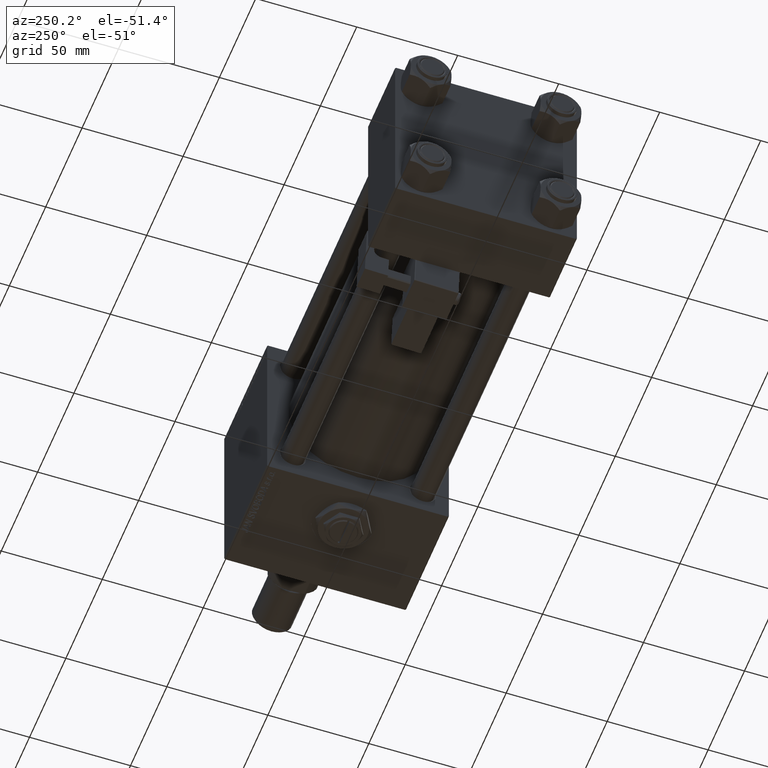
[diagram: clean part render]
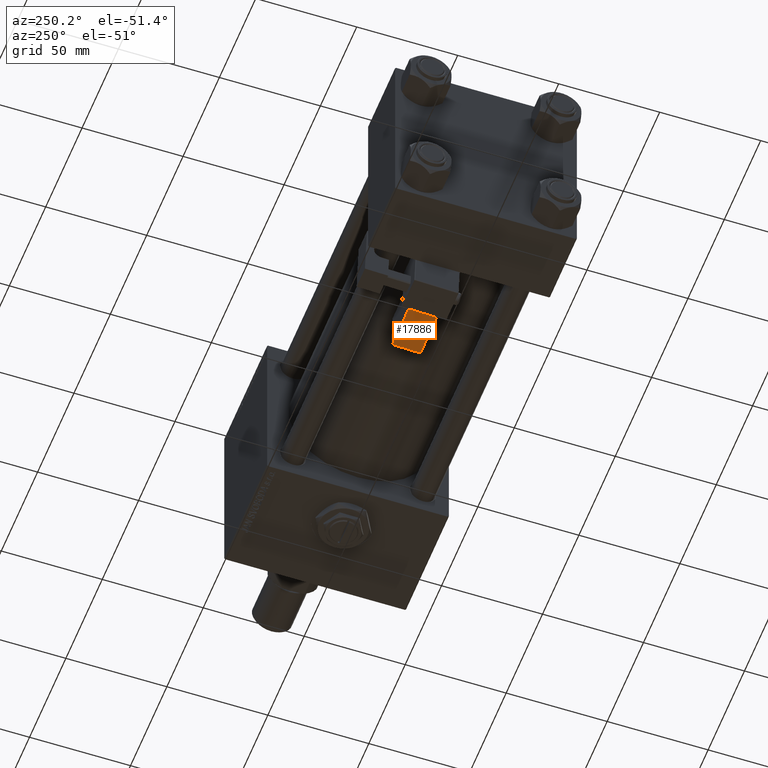
[diagram: same view with one face highlighted and labeled with its STEP entity id]
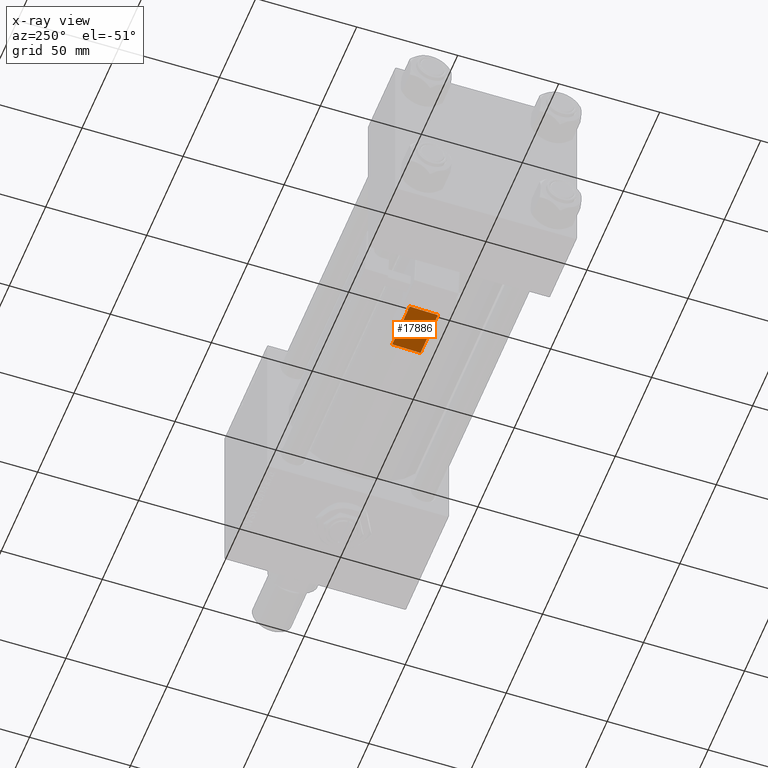
[diagram: x-ray of the same camera — body ghosted, the highlighted face saturated]
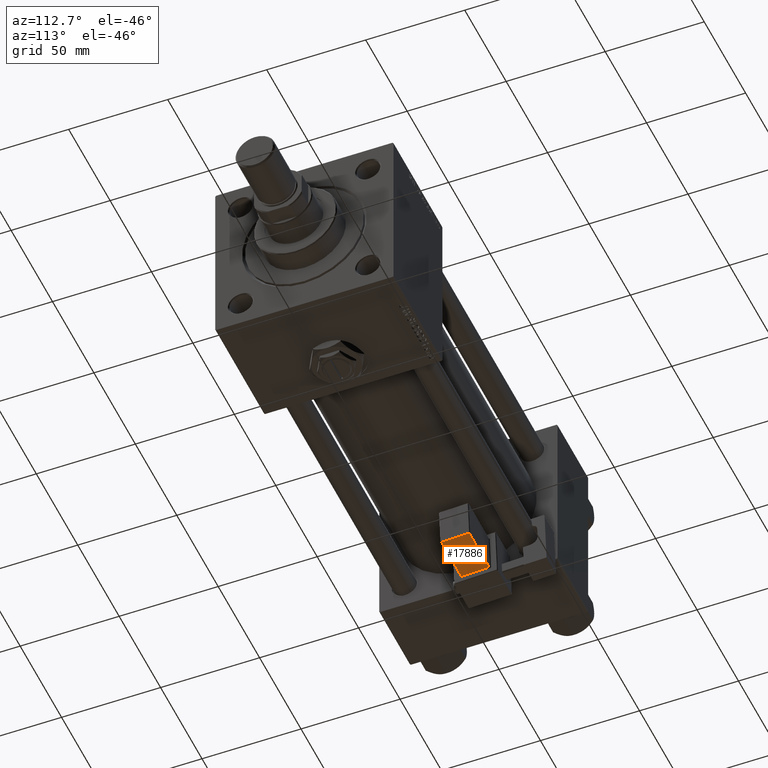
[diagram: same view with one face highlighted and labeled with its STEP entity id]
A machine part, auxiliary view. The second image highlights one B-rep face of the part: STEP entity #17886.
The next image is the same camera in x-ray: the body ghosted, the highlighted face saturated — about 0% of this face is hidden behind the body in this view.
A second angle (auxiliary view) of the same face is appended — the face is thin or edge-on in the first view.
In plain terms, the highlighted planar face has unit normal (-0, -0.0353, 0.9994).
Its self-contained STEP definition (entity closure, byte-faithful):
#375 = EDGE_CURVE ( 'NONE', #2898, #27754, #16295, .T. ) ;
#1561 = EDGE_CURVE ( 'NONE', #24729, #38210, #50690, .T. ) ;
#2898 = VERTEX_POINT ( 'NONE', #52900 ) ;
#4371 = LINE ( 'NONE', #50439, #22872 ) ;
#7051 = CARTESIAN_POINT ( 'NONE',  ( 9.250000000000005329, -35.75000000000000000, 2.000000000000005329 ) ) ;
#8470 = FACE_OUTER_BOUND ( 'NONE', #19358, .T. ) ;
#9577 = DIRECTION ( 'NONE',  ( 5.473822126268816683E-48, -1.000000000000000000, -1.156482317317871725E-16 ) ) ;
#12611 = DIRECTION ( 'NONE',  ( 1.000000000000000000, 0.000000000000000000, 1.334402673828313339E-16 ) ) ;
#16023 = CARTESIAN_POINT ( 'NONE',  ( 33.75000000000000000, -35.75000000000000000, 2.000000000000008438 ) ) ;
#16295 = LINE ( 'NONE', #16023, #35837 ) ;
#17886 = ADVANCED_FACE ( 'NONE', ( #8470 ), #37420, .F. ) ;
#19358 = EDGE_LOOP ( 'NONE', ( #34823, #33305, #37086, #29343 ) ) ;
#22872 = VECTOR ( 'NONE', #41623, 1000.000000000000000 ) ;
#24729 = VERTEX_POINT ( 'NONE', #34522 ) ;
#24821 = DIRECTION ( 'NONE',  ( -1.000000000000000000, 0.000000000000000000, -1.334402673828313339E-16 ) ) ;
#27754 = VERTEX_POINT ( 'NONE', #7051 ) ;
#29343 = ORIENTED_EDGE ( 'NONE', *, *, #1561, .T. ) ;
#29703 = CARTESIAN_POINT ( 'NONE',  ( 33.25000000000000000, -36.25000000000000000, 2.000000000000008438 ) ) ;
#33305 = ORIENTED_EDGE ( 'NONE', *, *, #375, .T. ) ;
#34132 = CARTESIAN_POINT ( 'NONE',  ( 33.75000000000000000, -21.75000000000000000, 2.000000000000010214 ) ) ;
#34522 = CARTESIAN_POINT ( 'NONE',  ( 9.250000000000005329, -21.75000000000000000, 2.000000000000006661 ) ) ;
#34557 = EDGE_CURVE ( 'NONE', #38210, #2898, #46280, .T. ) ;
#34823 = ORIENTED_EDGE ( 'NONE', *, *, #34557, .T. ) ;
#35837 = VECTOR ( 'NONE', #24821, 1000.000000000000000 ) ;
#36924 = AXIS2_PLACEMENT_3D ( 'NONE', #46530, #54264, #12611 ) ;
#37086 = ORIENTED_EDGE ( 'NONE', *, *, #40465, .T. ) ;
#37420 = PLANE ( 'NONE',  #36924 ) ;
#37993 = DIRECTION ( 'NONE',  ( 1.000000000000000000, -0.000000000000000000, 1.334402673828313339E-16 ) ) ;
#38210 = VERTEX_POINT ( 'NONE', #40025 ) ;
#38528 = VECTOR ( 'NONE', #37993, 1000.000000000000000 ) ;
#40025 = CARTESIAN_POINT ( 'NONE',  ( 33.25000000000000000, -21.75000000000000000, 2.000000000000010214 ) ) ;
#40465 = EDGE_CURVE ( 'NONE', #27754, #24729, #4371, .T. ) ;
#41623 = DIRECTION ( 'NONE',  ( -1.543213096464132036E-32, 1.000000000000000000, 1.156482317317871725E-16 ) ) ;
#41855 = VECTOR ( 'NONE', #9577, 1000.000000000000000 ) ;
#46280 = LINE ( 'NONE', #29703, #41855 ) ;
#46530 = CARTESIAN_POINT ( 'NONE',  ( 33.75000000000000000, -21.24999999999999645, 2.000000000000010214 ) ) ;
#50439 = CARTESIAN_POINT ( 'NONE',  ( 9.250000000000005329, -21.24999999999999645, 2.000000000000007105 ) ) ;
#50690 = LINE ( 'NONE', #34132, #38528 ) ;
#52900 = CARTESIAN_POINT ( 'NONE',  ( 33.25000000000000000, -35.75000000000000000, 2.000000000000008438 ) ) ;
#54264 = DIRECTION ( 'NONE',  ( -1.334402673828313339E-16, -1.156482317317871725E-16, 1.000000000000000000 ) ) ;